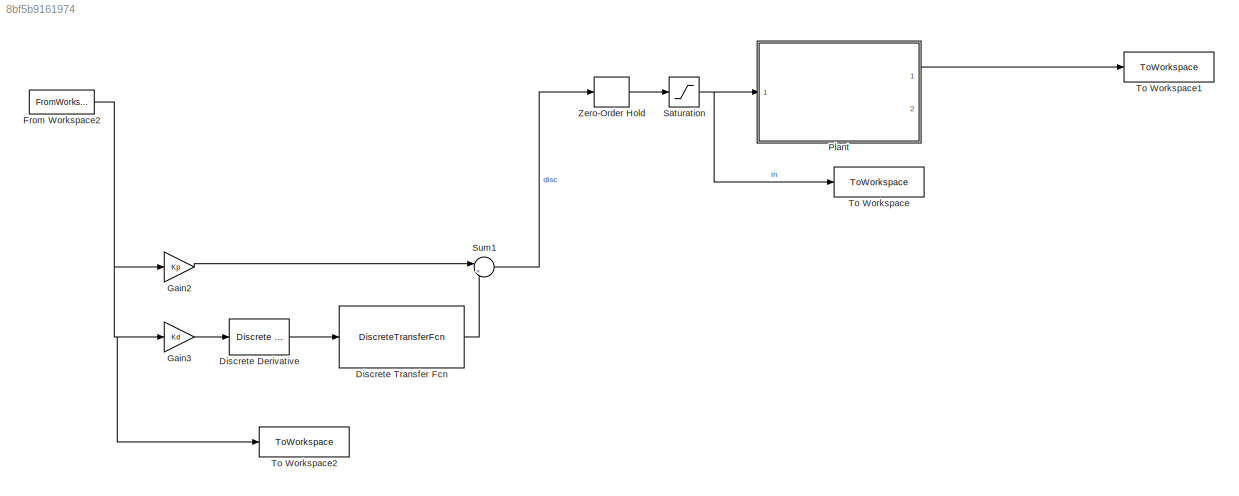
MODEL slx_8bf5b9161974
KIND model
CONFIG AbsTol = auto
CONFIG EnableMultiTasking = on
CONFIG FixedStep = 0.001
CONFIG MaxStep = auto
CONFIG MinStep = auto
CONFIG RelTol = 1e-3
CONFIG SampleTimeConstraint = Unconstrained
CONFIG SolverName = ode1
CONFIG StartTime = 0.0
CONFIG StopTime = inf
WORKSPACE source: mxarray member
WORKSPACE Kd = 0.04611
WORKSPACE Ki = 124.3945
WORKSPACE Kp = 2.1998
BLOCK [Reference] Discrete Derivative  REF=simulink/Discrete/Discrete Derivative
  Ports = [1, 1]
  SourceBlock = simulink/Discrete/Discrete Derivative
  SourceProductBaseCode = SL
  SourceType = Discrete Derivative
BLOCK [DiscreteTransferFcn] Discrete Transfer Fcn
  Denominator = [1 -ad]
  InputPortMap = u0
  Numerator = [(1-ad) 0]
  Ports = [1, 1]
BLOCK [FromWorkspace] From Workspace2
  VariableName = xd
BLOCK [Gain] Gain2
  Gain = Kp
BLOCK [Gain] Gain3
  Gain = Kd
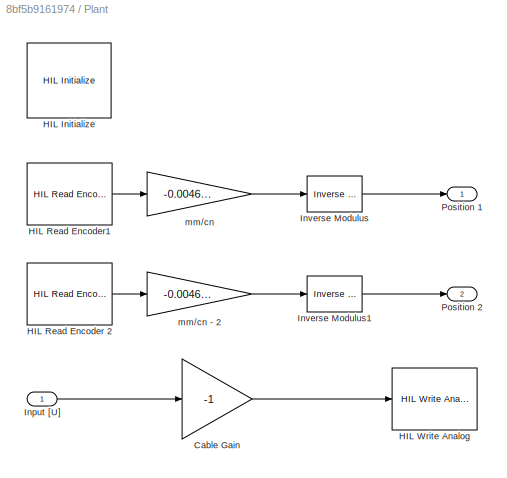
BLOCK [SubSystem] Plant
  Ports = [1, 2]
  RequestExecContextInheritance = off
BLOCK [Gain] Plant/Cable Gain
  Gain = -1
BLOCK [Reference] Plant/HIL Initialize  REF=quarc_library/Data Acquisition/Generic/Configuration/HIL Initialize
  AttributesFormatString = %<object_name> (%<board_type>-%<board_number>)
  Ports = []
  Priority = -99
  SourceBlock = quarc_library/Data Acquisition/Generic/Configuration/HIL Initialize
  SourceProductName = QUARC Targets
  SourceType = HIL Initialize
  UserDataPersistent = on
BLOCK [Reference] Plant/HIL Read Encoder 2  REF=quarc_library/Data Acquisition/Generic/Immediate I//O/HIL Read Encoder
  AttributesFormatString = (%<object_name>)
  Ports = [0, 1]
  SourceBlock = quarc_library/Data Acquisition/Generic/Immediate I//O/HIL Read Encoder
  SourceProductName = QUARC Targets
  SourceType = HIL Read Encoder
  UserDataPersistent = on
BLOCK [Reference] Plant/HIL Read Encoder1  REF=quarc_library/Data Acquisition/Generic/Immediate I//O/HIL Read Encoder
  AttributesFormatString = (%<object_name>)
  Ports = [0, 1]
  SourceBlock = quarc_library/Data Acquisition/Generic/Immediate I//O/HIL Read Encoder
  SourceProductName = QUARC Targets
  SourceType = HIL Read Encoder
  UserDataPersistent = on
BLOCK [Reference] Plant/HIL Write Analog  REF=quarc_library/Data Acquisition/Generic/Immediate I//O/HIL Write Analog
  AttributesFormatString = (%<object_name>)
  Ports = [1]
  SourceBlock = quarc_library/Data Acquisition/Generic/Immediate I//O/HIL Write Analog
  SourceProductName = QUARC Targets
  SourceType = HIL Write Analog
  Tag = unassigned
  UserDataPersistent = on
BLOCK [Inport] Plant/Input [U]
BLOCK [Reference] Plant/Inverse Modulus  REF=quarc_library/Discontinuities/Inverse
Modulus
  Ports = [1, 1]
  SourceBlock = quarc_library/Discontinuities/Inverse\nModulus
  SourceProductName = QUARC Targets
  SourceType = Inverse Modulus
BLOCK [Reference] Plant/Inverse Modulus1  REF=quarc_library/Discontinuities/Inverse
Modulus
  Ports = [1, 1]
  SourceBlock = quarc_library/Discontinuities/Inverse\nModulus
  SourceProductName = QUARC Targets
  SourceType = Inverse Modulus
BLOCK [Outport] Plant/Position 1
BLOCK [Outport] Plant/Position 2
  Port = 2
BLOCK [Gain] Plant/mm//cn
  Gain = -0.0046592
BLOCK [Gain] Plant/mm//cn - 2
  Gain = -0.0046592
BLOCK [Saturate] Saturation
  LowerLimit = -5
  UpperLimit = 5
BLOCK [Sum] Sum1
  Inputs = |++
  Ports = [2, 1]
BLOCK [ToWorkspace] To Workspace
  FixptAsFi = on
  MaxDataPoints = inf
  Ports = [1]
  SampleTime = T_sample
  SaveFormat = Structure With Time
  VariableName = c_in
BLOCK [ToWorkspace] To Workspace1
  FixptAsFi = on
  MaxDataPoints = inf
  Ports = [1]
  SampleTime = T_sample
  SaveFormat = Structure With Time
  VariableName = x_res
BLOCK [ToWorkspace] To Workspace2
  FixptAsFi = on
  MaxDataPoints = inf
  Ports = [1]
  SampleTime = Ts
  SaveFormat = Structure With Time
  VariableName = x_sim_in
BLOCK [ZeroOrderHold] Zero-Order Hold
  SampleTime = -1
LINE Discrete Derivative:1 -> Discrete Transfer Fcn:1
LINE Discrete Transfer Fcn:1 -> Sum1:2
NET From Workspace2:1 -> Gain2:1, Gain3:1, To Workspace2:1
LINE Gain2:1 -> Sum1:1
LINE Gain3:1 -> Discrete Derivative:1
LINE Plant/Cable Gain:1 -> Plant/HIL Write Analog:1
LINE Plant/HIL Read Encoder 2:1 -> Plant/mm//cn - 2:1
LINE Plant/HIL Read Encoder1:1 -> Plant/mm//cn:1
LINE Plant/Input [U]:1 -> Plant/Cable Gain:1
LINE Plant/Inverse Modulus1:1 -> Plant/Position 2:1
LINE Plant/Inverse Modulus:1 -> Plant/Position 1:1
LINE Plant/mm//cn - 2:1 -> Plant/Inverse Modulus1:1
LINE Plant/mm//cn:1 -> Plant/Inverse Modulus:1
LINE Plant:1 -> To Workspace1:1
NET Saturation:1 -> Plant:1, To Workspace:1
LINE Sum1:1 -> Zero-Order Hold:1
LINE Zero-Order Hold:1 -> Saturation:1
note: NET lines group one-source signal fan-out (src -> all destinations, sorted); 1:1 wires keep LINE
